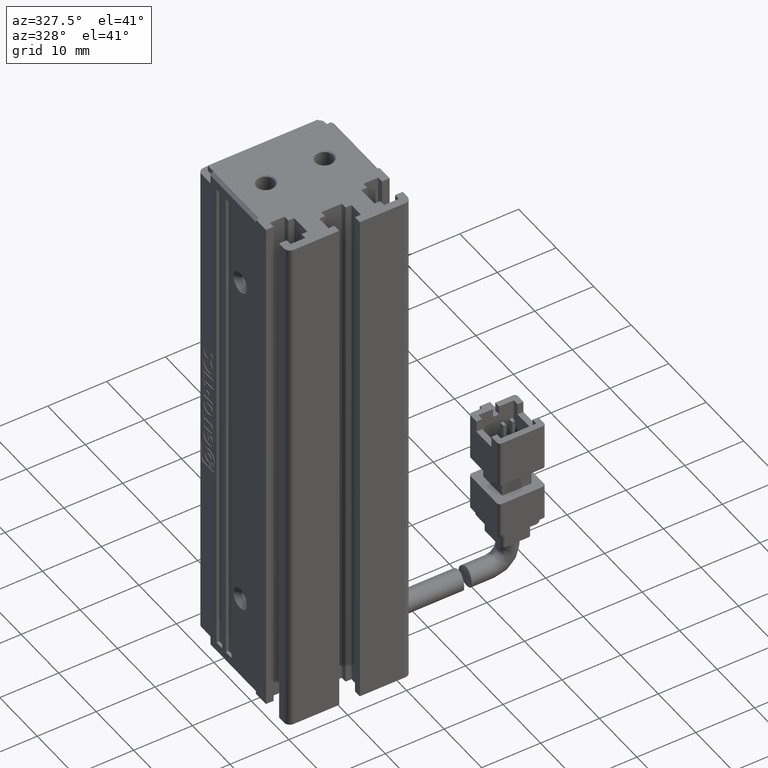
[diagram: clean part render]
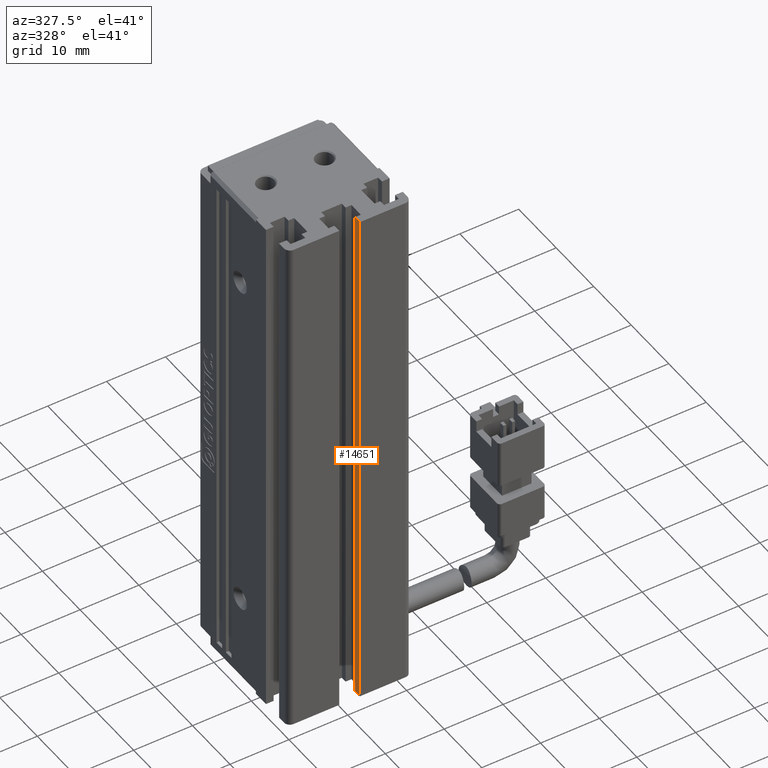
[diagram: same view with one face highlighted and labeled with its STEP entity id]
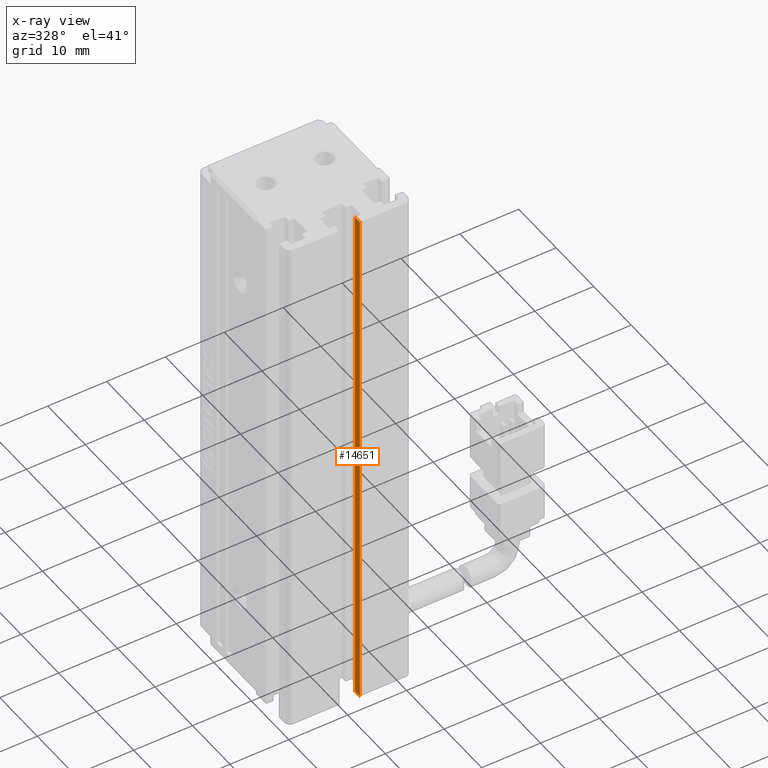
[diagram: x-ray of the same camera — body ghosted, the highlighted face saturated]
A machine part, auxiliary view. The second image highlights one B-rep face of the part: STEP entity #14651.
The next image is the same camera in x-ray: the body ghosted, the highlighted face saturated — about 0% of this face is hidden behind the body in this view.
In plain terms, the highlighted planar face has unit normal (1, 0, -0).
Its self-contained STEP definition (entity closure, byte-faithful):
#1107 = PLANE ( 'NONE',  #15076 ) ;
#1168 = VECTOR ( 'NONE', #9070, 1000.000000000000000 ) ;
#2620 = DIRECTION ( 'NONE',  ( 0.0000000000000000000, -0.0000000000000000000, 1.000000000000000000 ) ) ;
#3908 = LINE ( 'NONE', #16433, #1168 ) ;
#4305 = VECTOR ( 'NONE', #2620, 1000.000000000000000 ) ;
#5533 = VERTEX_POINT ( 'NONE', #9219 ) ;
#6018 = EDGE_CURVE ( 'NONE', #23266, #5533, #20951, .T. ) ;
#6038 = EDGE_CURVE ( 'NONE', #7157, #31087, #3908, .T. ) ;
#7157 = VERTEX_POINT ( 'NONE', #26745 ) ;
#9070 = DIRECTION ( 'NONE',  ( -0.0000000000000000000, -1.000000000000000000, -0.0000000000000000000 ) ) ;
#9219 = CARTESIAN_POINT ( 'NONE',  ( 42.67537974683542500, 12.29073232304837200, -160.0000000000000000 ) ) ;
#9296 = FACE_OUTER_BOUND ( 'NONE', #24249, .T. ) ;
#9563 = CARTESIAN_POINT ( 'NONE',  ( 42.67537974683542500, 10.99073232304837000, -70.00000000000000000 ) ) ;
#10701 = LINE ( 'NONE', #12248, #18054 ) ;
#11356 = DIRECTION ( 'NONE',  ( 1.000000000000000000, 0.0000000000000000000, -0.0000000000000000000 ) ) ;
#12248 = CARTESIAN_POINT ( 'NONE',  ( 42.67537974683542500, 12.29073232304837200, -70.00000000000000000 ) ) ;
#14651 = ADVANCED_FACE ( 'NONE', ( #9296 ), #1107, .F. ) ;
#15076 = AXIS2_PLACEMENT_3D ( 'NONE', #21055, #11356, #16312 ) ;
#16312 = DIRECTION ( 'NONE',  ( -0.0000000000000000000, 0.0000000000000000000, -1.000000000000000000 ) ) ;
#16433 = CARTESIAN_POINT ( 'NONE',  ( 42.67537974683542500, 7.083797468354437600, -70.00000000000000000 ) ) ;
#17413 = ORIENTED_EDGE ( 'NONE', *, *, #30649, .T. ) ;
#18054 = VECTOR ( 'NONE', #24710, 1000.000000000000000 ) ;
#18801 = ORIENTED_EDGE ( 'NONE', *, *, #6038, .F. ) ;
#19042 = VECTOR ( 'NONE', #28715, 1000.000000000000000 ) ;
#20384 = EDGE_CURVE ( 'NONE', #5533, #7157, #10701, .T. ) ;
#20951 = LINE ( 'NONE', #31353, #19042 ) ;
#21055 = CARTESIAN_POINT ( 'NONE',  ( 42.67537974683542500, 7.083797468354437600, -70.00000000000000000 ) ) ;
#22343 = CARTESIAN_POINT ( 'NONE',  ( 42.67537974683542500, 10.99073232304837000, -70.00000000000000000 ) ) ;
#23266 = VERTEX_POINT ( 'NONE', #31908 ) ;
#24249 = EDGE_LOOP ( 'NONE', ( #17413, #18801, #27453, #30060 ) ) ;
#24710 = DIRECTION ( 'NONE',  ( 0.0000000000000000000, -0.0000000000000000000, 1.000000000000000000 ) ) ;
#24908 = LINE ( 'NONE', #22343, #4305 ) ;
#26745 = CARTESIAN_POINT ( 'NONE',  ( 42.67537974683542500, 12.29073232304837200, -70.00000000000000000 ) ) ;
#27453 = ORIENTED_EDGE ( 'NONE', *, *, #20384, .F. ) ;
#28715 = DIRECTION ( 'NONE',  ( 0.0000000000000000000, 1.000000000000000000, 0.0000000000000000000 ) ) ;
#30060 = ORIENTED_EDGE ( 'NONE', *, *, #6018, .F. ) ;
#30649 = EDGE_CURVE ( 'NONE', #23266, #31087, #24908, .T. ) ;
#31087 = VERTEX_POINT ( 'NONE', #9563 ) ;
#31353 = CARTESIAN_POINT ( 'NONE',  ( 42.67537974683542500, 7.083797468354437600, -160.0000000000000000 ) ) ;
#31908 = CARTESIAN_POINT ( 'NONE',  ( 42.67537974683542500, 10.99073232304837000, -160.0000000000000000 ) ) ;